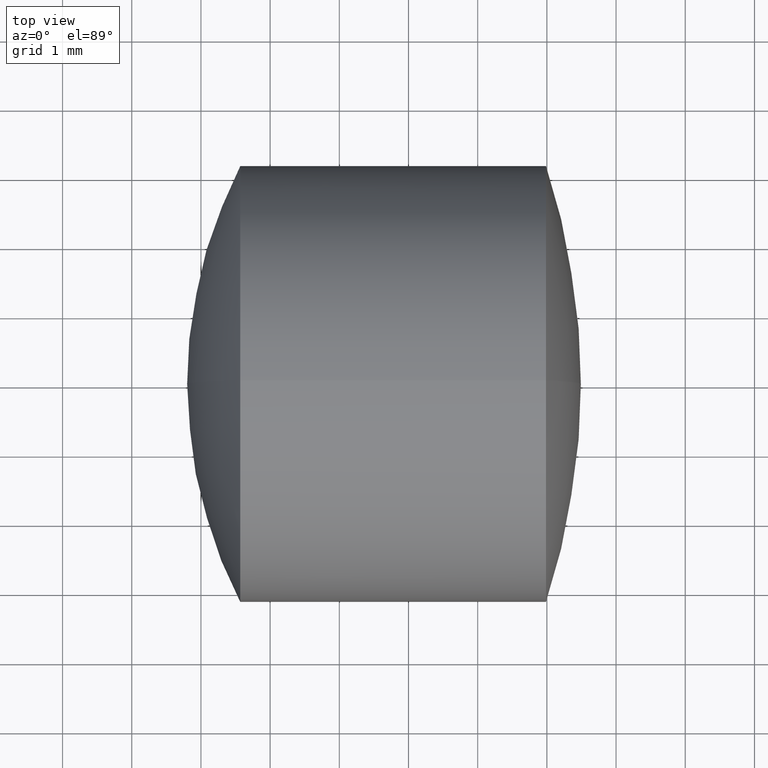
[diagram: clean part render]
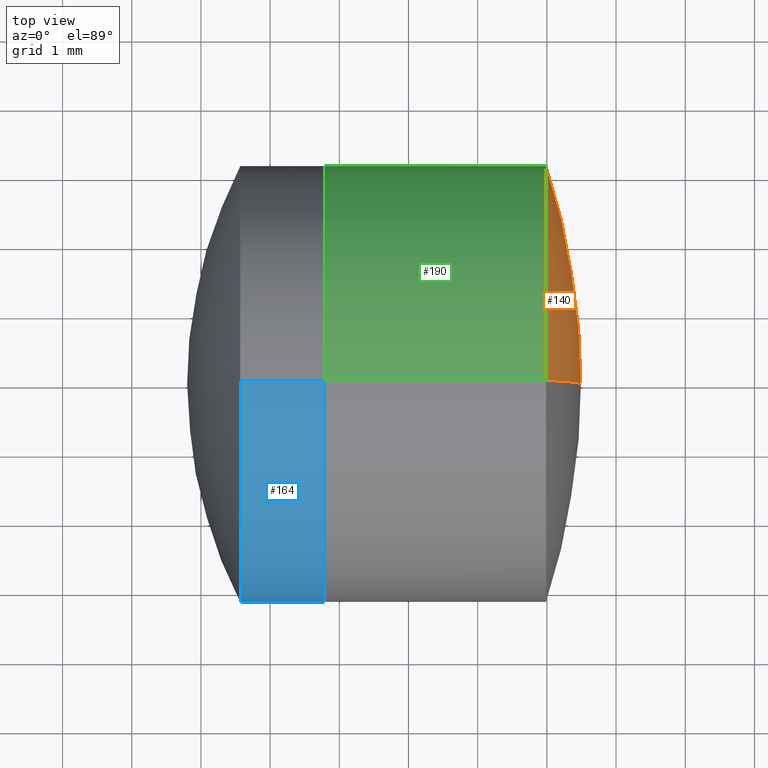
[diagram: same view with three faces highlighted in distinct colors, each labeled with its STEP entity id]
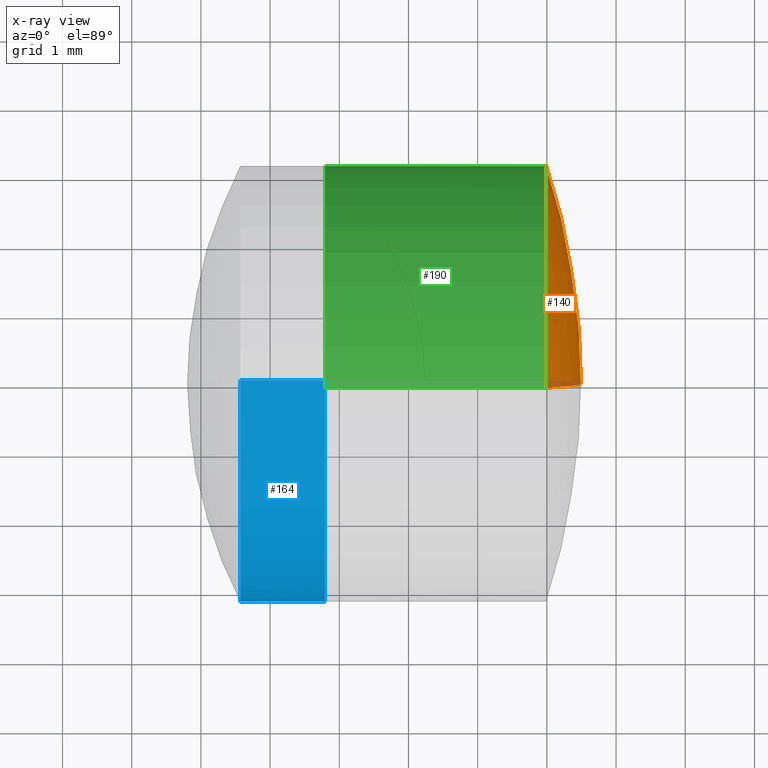
[diagram: x-ray of the same camera — body ghosted, the three highlighted faces saturated]
A machine part, top view with three faces highlighted in distinct colors.
The next image is the same camera in x-ray (body ghosted, the three faces saturated) — at least one of them is partly hidden behind the body in this view.
Their STEP definitions:

[orange] entity #140 — the highlighted spherical surface has radius 10.1 mm.
#3 = VERTEX_POINT ( 'NONE', #38 ) ;
#9 = AXIS2_PLACEMENT_3D ( 'NONE', #131, #325, #158 ) ;
#11 = SPHERICAL_SURFACE ( 'NONE', #324, 10.10000000000000000 ) ;
#18 = DIRECTION ( 'NONE',  ( -0.0000000000000000000, 1.000000000000000000, 1.224646799147353200E-016 ) ) ;
#38 = CARTESIAN_POINT ( 'NONE',  ( 7.490604339932700000, 0.0000000000000000000, 6.184466335694133100E-016 ) ) ;
#45 = DIRECTION ( 'NONE',  ( 0.0000000000000000000, 1.000000000000000000, 0.0000000000000000000 ) ) ;
#85 = CARTESIAN_POINT ( 'NONE',  ( 6.986827555344063100, 3.857637417314162200E-016, -3.149999999999999500 ) ) ;
#90 = ORIENTED_EDGE ( 'NONE', *, *, #159, .F. ) ;
#124 = EDGE_CURVE ( 'NONE', #3, #296, #330, .T. ) ;
#131 = CARTESIAN_POINT ( 'NONE',  ( 6.986827555344063100, 0.0000000000000000000, 0.0000000000000000000 ) ) ;
#140 = ADVANCED_FACE ( 'NONE', ( #294 ), #11, .T. ) ;
#143 = EDGE_CURVE ( 'NONE', #3, #145, #221, .T. ) ;
#145 = VERTEX_POINT ( 'NONE', #297 ) ;
#146 = CIRCLE ( 'NONE', #9, 3.149999999999999500 ) ;
#149 = ORIENTED_EDGE ( 'NONE', *, *, #124, .T. ) ;
#157 = DIRECTION ( 'NONE',  ( 0.0000000000000000000, -1.000000000000000000, 0.0000000000000000000 ) ) ;
#158 = DIRECTION ( 'NONE',  ( 0.0000000000000000000, 0.0000000000000000000, 1.000000000000000000 ) ) ;
#159 = EDGE_CURVE ( 'NONE', #145, #296, #146, .T. ) ;
#179 = CARTESIAN_POINT ( 'NONE',  ( -2.609395660067300100, 0.0000000000000000000, 0.0000000000000000000 ) ) ;
#199 = ORIENTED_EDGE ( 'NONE', *, *, #143, .F. ) ;
#206 = DIRECTION ( 'NONE',  ( 0.0000000000000000000, -1.224646799147353200E-016, 1.000000000000000000 ) ) ;
#221 = CIRCLE ( 'NONE', #308, 10.10000000000000000 ) ;
#242 = EDGE_LOOP ( 'NONE', ( #199, #149, #90 ) ) ;
#243 = DIRECTION ( 'NONE',  ( 0.0000000000000000000, 0.0000000000000000000, 1.000000000000000000 ) ) ;
#271 = AXIS2_PLACEMENT_3D ( 'NONE', #179, #18, #206 ) ;
#294 = FACE_OUTER_BOUND ( 'NONE', #242, .T. ) ;
#296 = VERTEX_POINT ( 'NONE', #85 ) ;
#297 = CARTESIAN_POINT ( 'NONE',  ( 6.986827555344063100, 0.0000000000000000000, 3.149999999999999500 ) ) ;
#308 = AXIS2_PLACEMENT_3D ( 'NONE', #323, #157, #346 ) ;
#323 = CARTESIAN_POINT ( 'NONE',  ( -2.609395660067300100, 0.0000000000000000000, 0.0000000000000000000 ) ) ;
#324 = AXIS2_PLACEMENT_3D ( 'NONE', #345, #45, #243 ) ;
#325 = DIRECTION ( 'NONE',  ( -1.000000000000000000, -0.0000000000000000000, -0.0000000000000000000 ) ) ;
#330 = CIRCLE ( 'NONE', #271, 10.10000000000000000 ) ;
#345 = CARTESIAN_POINT ( 'NONE',  ( -2.609395660067300100, 0.0000000000000000000, 0.0000000000000000000 ) ) ;
#346 = DIRECTION ( 'NONE',  ( 0.0000000000000000000, 0.0000000000000000000, -1.000000000000000000 ) ) ;

[blue] entity #164 — the highlighted cylindrical surface (partial cylindrical patch) has radius 3.15 mm, axis along (-1, -0, -0).
#17 = VERTEX_POINT ( 'NONE', #340 ) ;
#25 = DIRECTION ( 'NONE',  ( -1.000000000000000000, -0.0000000000000000000, -0.0000000000000000000 ) ) ;
#34 = VERTEX_POINT ( 'NONE', #313 ) ;
#37 = CARTESIAN_POINT ( 'NONE',  ( 3.790307587695710600, 0.0000000000000000000, 3.149999999999999900 ) ) ;
#39 = CIRCLE ( 'NONE', #321, 3.149999999999999900 ) ;
#42 = LINE ( 'NONE', #137, #333 ) ;
#54 = LINE ( 'NONE', #163, #189 ) ;
#59 = AXIS2_PLACEMENT_3D ( 'NONE', #104, #210, #298 ) ;
#61 = VERTEX_POINT ( 'NONE', #37 ) ;
#64 = EDGE_LOOP ( 'NONE', ( #342, #100, #117, #119 ) ) ;
#65 = EDGE_CURVE ( 'NONE', #148, #17, #39, .T. ) ;
#72 = DIRECTION ( 'NONE',  ( -1.000000000000000000, -0.0000000000000000000, -0.0000000000000000000 ) ) ;
#74 = CARTESIAN_POINT ( 'NONE',  ( 2.568094163968829100, 3.857637417314162200E-016, -3.149999999999999900 ) ) ;
#100 = ORIENTED_EDGE ( 'NONE', *, *, #106, .T. ) ;
#104 = CARTESIAN_POINT ( 'NONE',  ( -0.8160621761658039000, 0.0000000000000000000, 0.0000000000000000000 ) ) ;
#106 = EDGE_CURVE ( 'NONE', #34, #61, #262, .T. ) ;
#110 = DIRECTION ( 'NONE',  ( -1.000000000000000000, -0.0000000000000000000, -0.0000000000000000000 ) ) ;
#117 = ORIENTED_EDGE ( 'NONE', *, *, #229, .T. ) ;
#119 = ORIENTED_EDGE ( 'NONE', *, *, #65, .F. ) ;
#127 = DIRECTION ( 'NONE',  ( -1.000000000000000000, -0.0000000000000000000, -0.0000000000000000000 ) ) ;
#137 = CARTESIAN_POINT ( 'NONE',  ( -0.8160621761658039000, 0.0000000000000000000, 3.149999999999999900 ) ) ;
#147 = FACE_OUTER_BOUND ( 'NONE', #64, .T. ) ;
#148 = VERTEX_POINT ( 'NONE', #74 ) ;
#163 = CARTESIAN_POINT ( 'NONE',  ( -0.8160621761658039000, 3.857637417314162700E-016, -3.149999999999999900 ) ) ;
#164 = ADVANCED_FACE ( 'NONE', ( #147 ), #203, .T. ) ;
#189 = VECTOR ( 'NONE', #25, 1000.000000000000000 ) ;
#203 = CYLINDRICAL_SURFACE ( 'NONE', #59, 3.149999999999999900 ) ;
#210 = DIRECTION ( 'NONE',  ( -1.000000000000000000, -0.0000000000000000000, -0.0000000000000000000 ) ) ;
#229 = EDGE_CURVE ( 'NONE', #61, #17, #42, .T. ) ;
#235 = EDGE_CURVE ( 'NONE', #34, #148, #54, .T. ) ;
#239 = CARTESIAN_POINT ( 'NONE',  ( 3.790307587695710600, 0.0000000000000000000, 0.0000000000000000000 ) ) ;
#258 = AXIS2_PLACEMENT_3D ( 'NONE', #239, #72, #269 ) ;
#262 = CIRCLE ( 'NONE', #258, 3.149999999999999900 ) ;
#269 = DIRECTION ( 'NONE',  ( 0.0000000000000000000, 0.0000000000000000000, 1.000000000000000000 ) ) ;
#293 = CARTESIAN_POINT ( 'NONE',  ( 2.568094163968829100, 0.0000000000000000000, 0.0000000000000000000 ) ) ;
#298 = DIRECTION ( 'NONE',  ( 0.0000000000000000000, 0.0000000000000000000, 1.000000000000000000 ) ) ;
#313 = CARTESIAN_POINT ( 'NONE',  ( 3.790307587695710600, 3.857637417314162700E-016, -3.149999999999999900 ) ) ;
#318 = DIRECTION ( 'NONE',  ( 0.0000000000000000000, 0.0000000000000000000, 1.000000000000000000 ) ) ;
#321 = AXIS2_PLACEMENT_3D ( 'NONE', #293, #127, #318 ) ;
#333 = VECTOR ( 'NONE', #110, 1000.000000000000000 ) ;
#340 = CARTESIAN_POINT ( 'NONE',  ( 2.568094163968829100, 0.0000000000000000000, 3.149999999999999900 ) ) ;
#342 = ORIENTED_EDGE ( 'NONE', *, *, #235, .F. ) ;

[green] entity #190 — the highlighted cylindrical surface (partial cylindrical patch) has radius 3.15 mm, axis along (-1, -0, -0).
#9 = AXIS2_PLACEMENT_3D ( 'NONE', #131, #325, #158 ) ;
#13 = ORIENTED_EDGE ( 'NONE', *, *, #171, .T. ) ;
#20 = AXIS2_PLACEMENT_3D ( 'NONE', #134, #329, #161 ) ;
#29 = EDGE_LOOP ( 'NONE', ( #278, #13, #95, #136 ) ) ;
#47 = DIRECTION ( 'NONE',  ( 0.0000000000000000000, 0.0000000000000000000, 1.000000000000000000 ) ) ;
#69 = LINE ( 'NONE', #245, #138 ) ;
#85 = CARTESIAN_POINT ( 'NONE',  ( 6.986827555344063100, 3.857637417314162200E-016, -3.149999999999999500 ) ) ;
#95 = ORIENTED_EDGE ( 'NONE', *, *, #194, .F. ) ;
#96 = AXIS2_PLACEMENT_3D ( 'NONE', #347, #327, #47 ) ;
#108 = CARTESIAN_POINT ( 'NONE',  ( 3.790307587695709700, 0.0000000000000000000, 3.149999999999999900 ) ) ;
#128 = LINE ( 'NONE', #184, #336 ) ;
#131 = CARTESIAN_POINT ( 'NONE',  ( 6.986827555344063100, 0.0000000000000000000, 0.0000000000000000000 ) ) ;
#134 = CARTESIAN_POINT ( 'NONE',  ( 3.790307587695709700, 0.0000000000000000000, 0.0000000000000000000 ) ) ;
#136 = ORIENTED_EDGE ( 'NONE', *, *, #214, .F. ) ;
#138 = VECTOR ( 'NONE', #211, 1000.000000000000000 ) ;
#145 = VERTEX_POINT ( 'NONE', #297 ) ;
#146 = CIRCLE ( 'NONE', #9, 3.149999999999999500 ) ;
#158 = DIRECTION ( 'NONE',  ( 0.0000000000000000000, 0.0000000000000000000, 1.000000000000000000 ) ) ;
#159 = EDGE_CURVE ( 'NONE', #145, #296, #146, .T. ) ;
#161 = DIRECTION ( 'NONE',  ( 0.0000000000000000000, 0.0000000000000000000, 1.000000000000000000 ) ) ;
#171 = EDGE_CURVE ( 'NONE', #296, #291, #69, .T. ) ;
#184 = CARTESIAN_POINT ( 'NONE',  ( -0.5519199926577972300, 0.0000000000000000000, 3.149999999999999900 ) ) ;
#190 = ADVANCED_FACE ( 'NONE', ( #284 ), #197, .T. ) ;
#194 = EDGE_CURVE ( 'NONE', #216, #291, #219, .T. ) ;
#197 = CYLINDRICAL_SURFACE ( 'NONE', #96, 3.149999999999999900 ) ;
#211 = DIRECTION ( 'NONE',  ( -1.000000000000000000, -0.0000000000000000000, -0.0000000000000000000 ) ) ;
#213 = DIRECTION ( 'NONE',  ( -1.000000000000000000, -0.0000000000000000000, -0.0000000000000000000 ) ) ;
#214 = EDGE_CURVE ( 'NONE', #145, #216, #128, .T. ) ;
#216 = VERTEX_POINT ( 'NONE', #108 ) ;
#219 = CIRCLE ( 'NONE', #20, 3.150000000000000400 ) ;
#245 = CARTESIAN_POINT ( 'NONE',  ( -0.5519199926577972300, 3.857637417314162700E-016, -3.149999999999999900 ) ) ;
#257 = CARTESIAN_POINT ( 'NONE',  ( 3.790307587695709700, 3.857637417314162200E-016, -3.149999999999999900 ) ) ;
#278 = ORIENTED_EDGE ( 'NONE', *, *, #159, .T. ) ;
#284 = FACE_OUTER_BOUND ( 'NONE', #29, .T. ) ;
#291 = VERTEX_POINT ( 'NONE', #257 ) ;
#296 = VERTEX_POINT ( 'NONE', #85 ) ;
#297 = CARTESIAN_POINT ( 'NONE',  ( 6.986827555344063100, 0.0000000000000000000, 3.149999999999999500 ) ) ;
#325 = DIRECTION ( 'NONE',  ( -1.000000000000000000, -0.0000000000000000000, -0.0000000000000000000 ) ) ;
#327 = DIRECTION ( 'NONE',  ( -1.000000000000000000, -0.0000000000000000000, -0.0000000000000000000 ) ) ;
#329 = DIRECTION ( 'NONE',  ( -1.000000000000000000, -0.0000000000000000000, -0.0000000000000000000 ) ) ;
#336 = VECTOR ( 'NONE', #213, 1000.000000000000000 ) ;
#347 = CARTESIAN_POINT ( 'NONE',  ( -0.5519199926577972300, 0.0000000000000000000, 0.0000000000000000000 ) ) ;